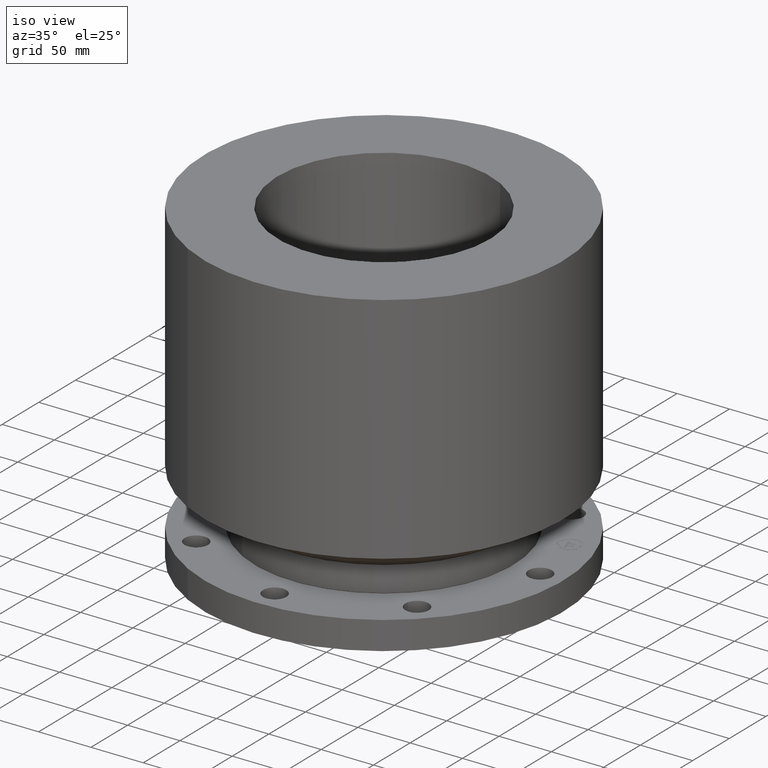
[diagram: clean part render]
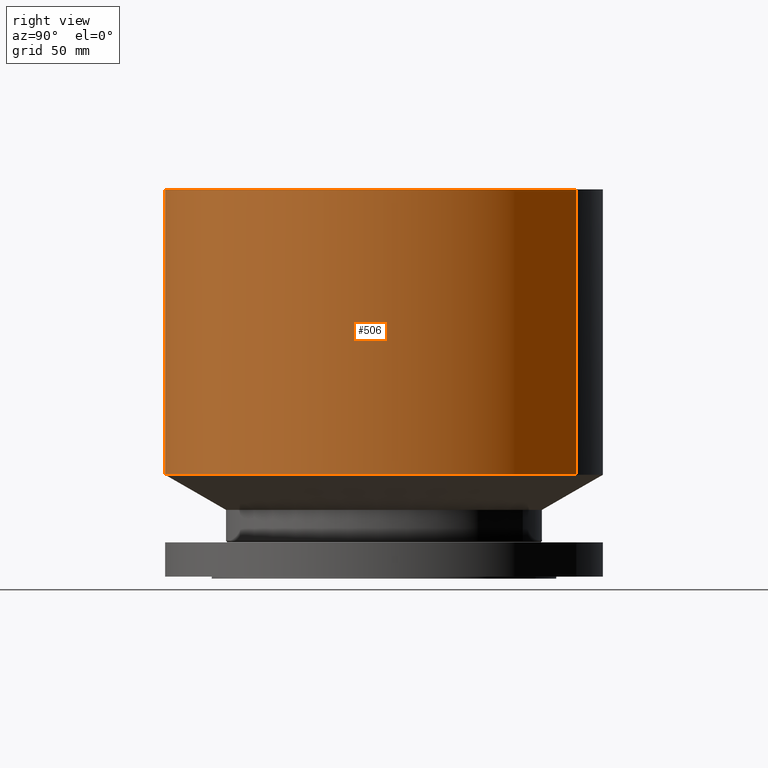
[diagram: tour spotlight — one face highlighted and labeled with its STEP entity id]
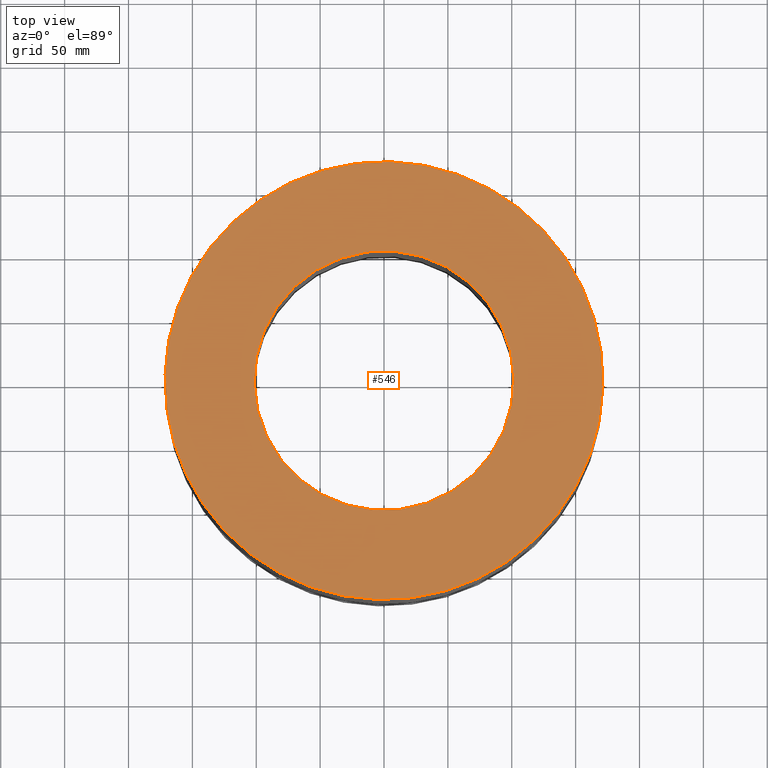
[diagram: tour spotlight — one face highlighted and labeled with its STEP entity id]
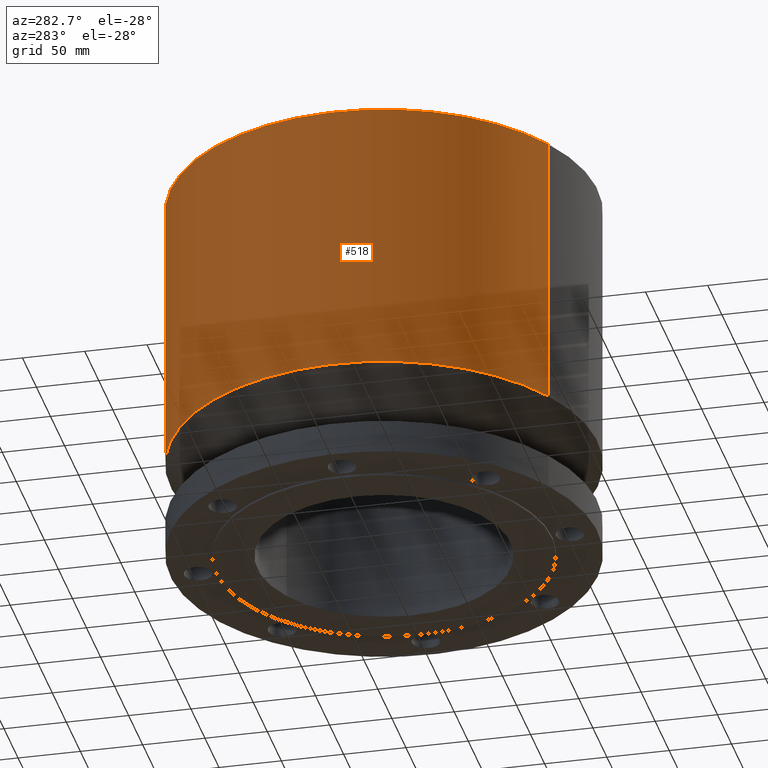
[diagram: tour spotlight — one face highlighted and labeled with its STEP entity id]
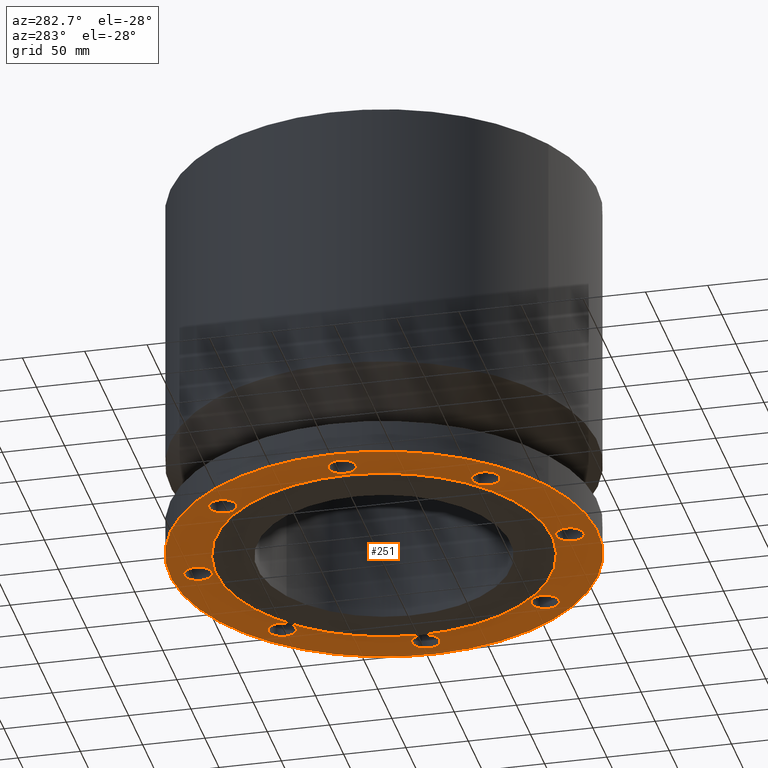
[diagram: tour spotlight — one face highlighted and labeled with its STEP entity id]
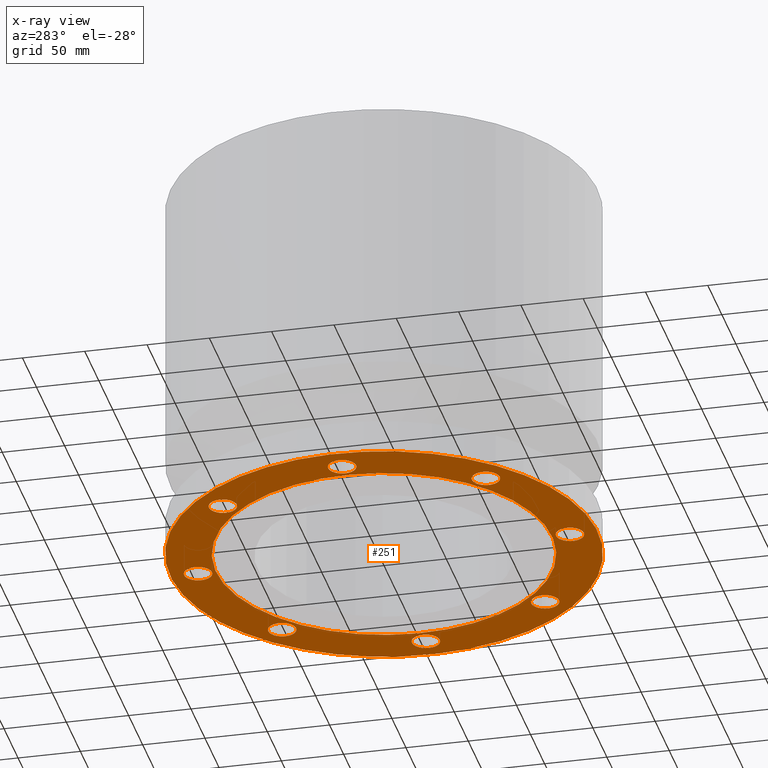
[diagram: x-ray of the same camera — body ghosted, this tour face saturated]
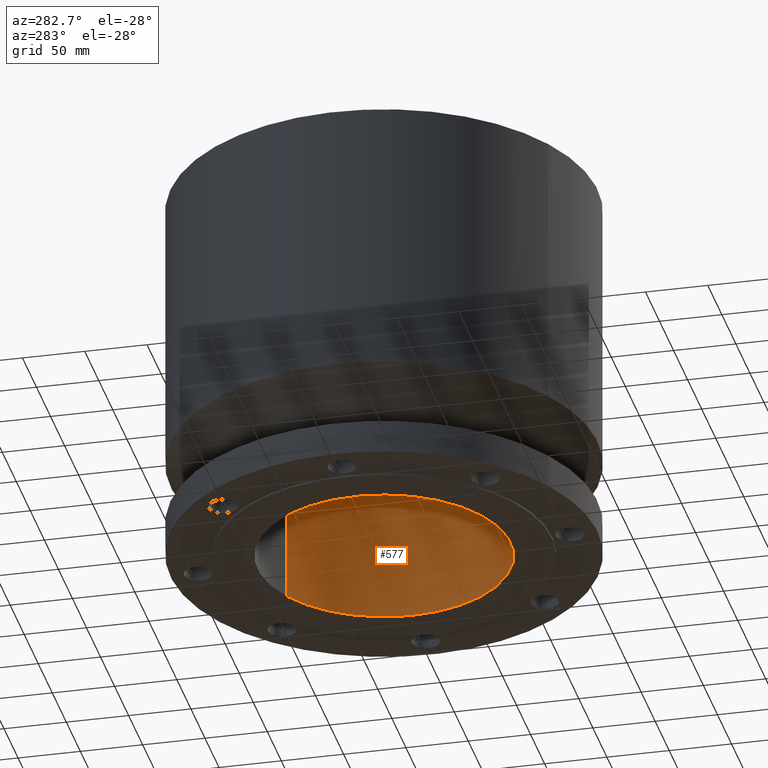
[diagram: tour spotlight — one face highlighted and labeled with its STEP entity id]
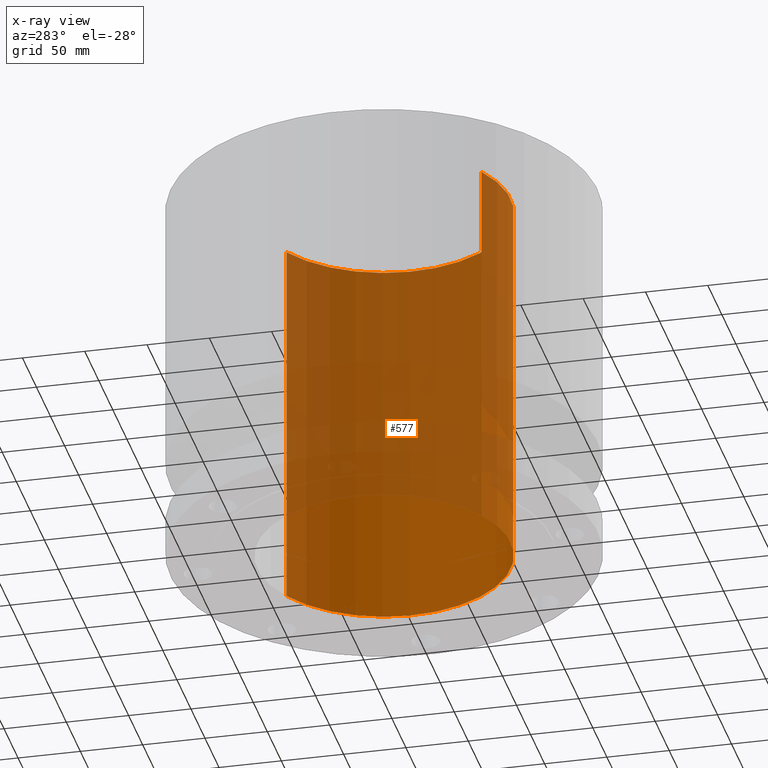
[diagram: x-ray of the same camera — body ghosted, this tour face saturated]
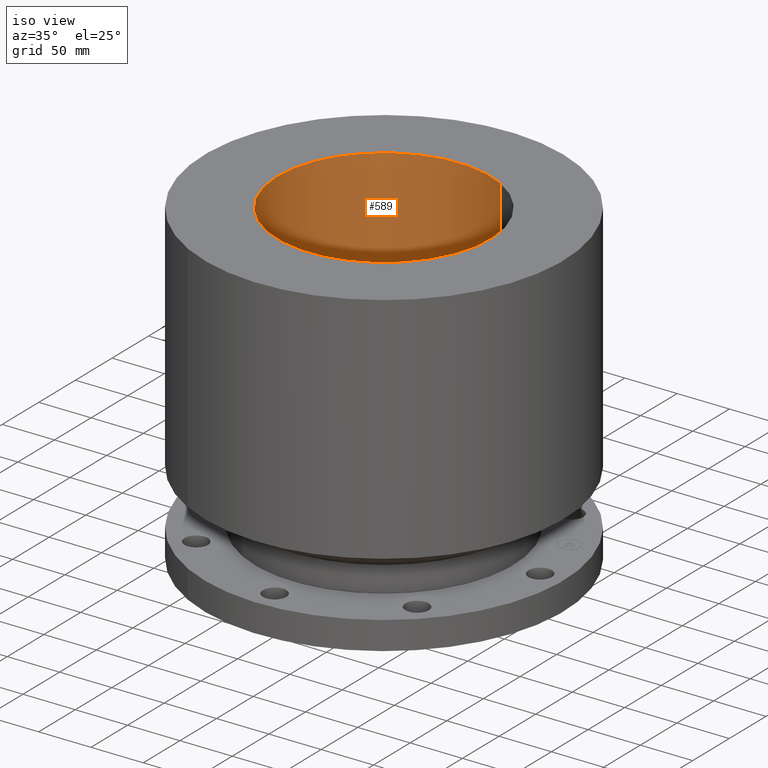
[diagram: tour spotlight — one face highlighted and labeled with its STEP entity id]
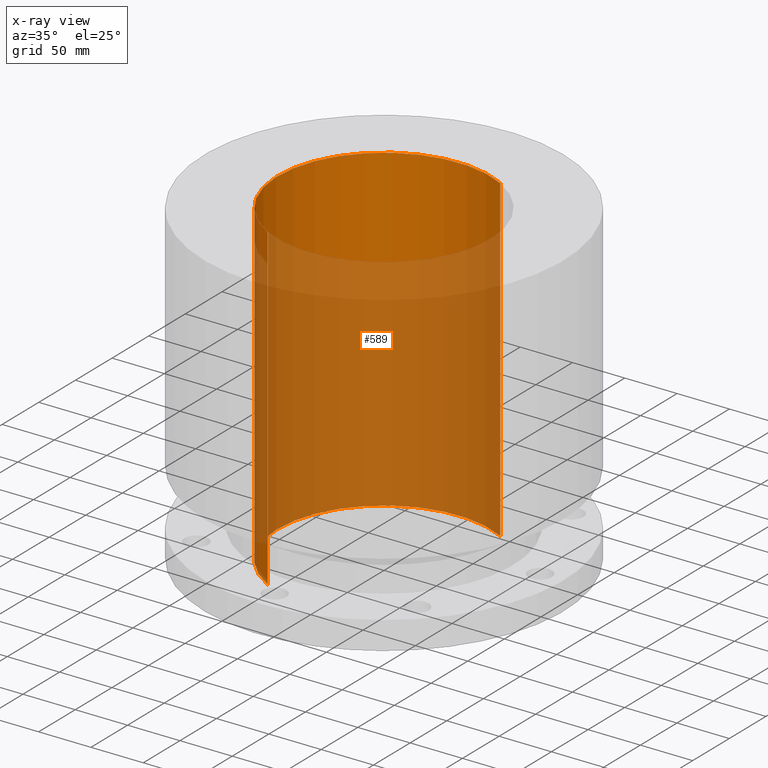
[diagram: x-ray of the same camera — body ghosted, this tour face saturated]
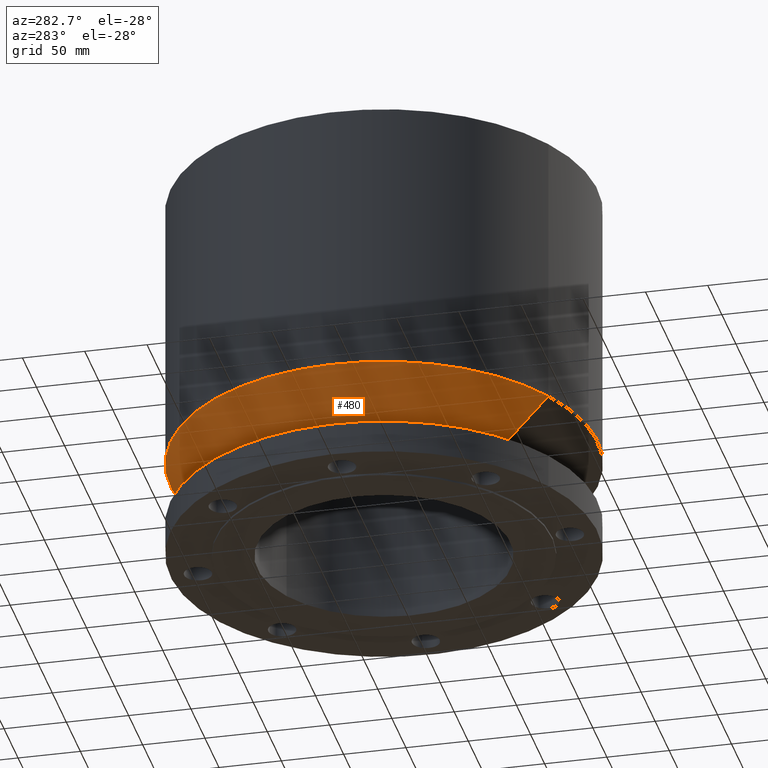
[diagram: tour spotlight — one face highlighted and labeled with its STEP entity id]
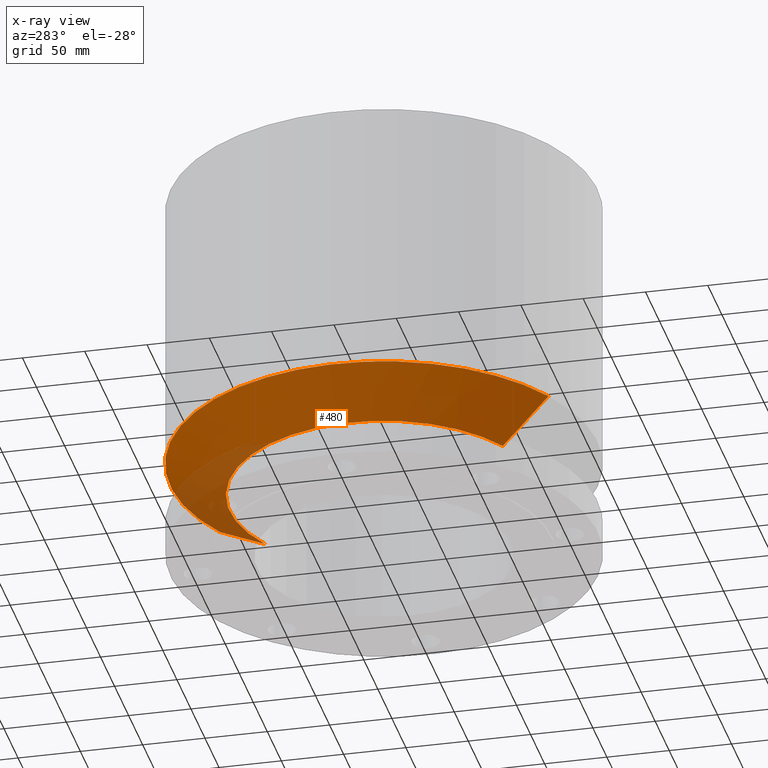
[diagram: x-ray of the same camera — body ghosted, this tour face saturated]
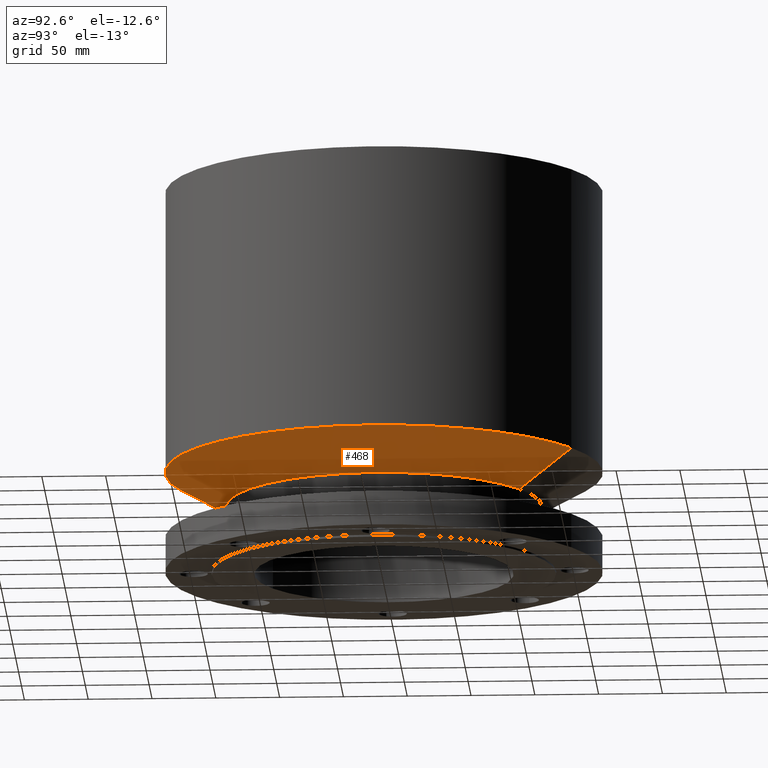
[diagram: tour spotlight — one face highlighted and labeled with its STEP entity id]
A machine part: a face-by-face anatomy tour. The part has 421 B-rep faces; the first image is the clean iso view, then the 8 largest visible faces are spotlighted one at a time (largest first), each with its STEP entity span.

Face 1 — right view, entity #506. In plain terms, the highlighted cylindrical surface (partial cylindrical patch) has radius 171.45 mm, axis along (0, 0, -1).
Definition (entity closure, byte-faithful):
#255=AXIS2_PLACEMENT_3D('Cylinder Axis2P3D',#252,#253,#254) ;
#452=AXIS2_PLACEMENT_3D('Circle Axis2P3D',#450,#451,$) ;
#490=AXIS2_PLACEMENT_3D('Circle Axis2P3D',#488,#489,$) ;
#252=CARTESIAN_POINT('Axis2P3D Location',(0.,0.,5.93750000002)) ;
#447=CARTESIAN_POINT('Vertex',(3.23612238559,5.92368229278,3.14003175474)) ;
#450=CARTESIAN_POINT('Axis2P3D Location',(0.,0.,3.14003175474)) ;
#454=CARTESIAN_POINT('Vertex',(-3.23612238559,-5.92368229278,3.14003175474)) ;
#481=CARTESIAN_POINT('Line Origine',(3.23612238559,5.92368229278,7.5387658774)) ;
#485=CARTESIAN_POINT('Vertex',(3.23612238559,5.92368229278,11.9375)) ;
#488=CARTESIAN_POINT('Axis2P3D Location',(0.,0.,11.9375)) ;
#492=CARTESIAN_POINT('Vertex',(-3.23612238559,-5.92368229278,11.9375)) ;
#495=CARTESIAN_POINT('Line Origine',(-3.23612238559,-5.92368229278,7.5387658774)) ;
#253=DIRECTION('Axis2P3D Direction',(0.,0.,-0.0393700787402)) ;
#254=DIRECTION('Axis2P3D XDirection',(-0.0188750212049,-0.0345504945626,0.)) ;
#451=DIRECTION('Axis2P3D Direction',(-0.,0.,0.0393700787402)) ;
#482=DIRECTION('Vector Direction',(0.,0.,-0.0393700787402)) ;
#489=DIRECTION('Axis2P3D Direction',(0.,0.,-0.0393700787402)) ;
#496=DIRECTION('Vector Direction',(0.,0.,-0.0393700787402)) ;
#483=VECTOR('Line Direction',#482,0.0393700787402) ;
#497=VECTOR('Line Direction',#496,0.0393700787402) ;
#501=ORIENTED_EDGE('',*,*,#456,.F.) ;
#502=ORIENTED_EDGE('',*,*,#487,.T.) ;
#503=ORIENTED_EDGE('',*,*,#494,.T.) ;
#504=ORIENTED_EDGE('',*,*,#499,.F.) ;
#506=ADVANCED_FACE('PartBody',(#505),#256,.T.) ;
#453=CIRCLE('generated circle',#452,6.75000000003) ;
#491=CIRCLE('generated circle',#490,6.75000000003) ;
#256=CYLINDRICAL_SURFACE('generated cylinder',#255,6.75000000003) ;
#456=EDGE_CURVE('',#448,#455,#453,.F.) ;
#487=EDGE_CURVE('',#448,#486,#484,.F.) ;
#494=EDGE_CURVE('',#486,#493,#491,.T.) ;
#499=EDGE_CURVE('',#455,#493,#498,.F.) ;
#500=EDGE_LOOP('',(#501,#502,#503,#504)) ;
#505=FACE_OUTER_BOUND('',#500,.T.) ;
#484=LINE('Line',#481,#483) ;
#498=LINE('Line',#495,#497) ;
#448=VERTEX_POINT('',#447) ;
#455=VERTEX_POINT('',#454) ;
#486=VERTEX_POINT('',#485) ;
#493=VERTEX_POINT('',#492) ;

Face 2 — top view, entity #546. In plain terms, the highlighted planar face has unit normal (0, 0, -1).
Definition (entity closure, byte-faithful):
#490=AXIS2_PLACEMENT_3D('Circle Axis2P3D',#488,#489,$) ;
#509=AXIS2_PLACEMENT_3D('Circle Axis2P3D',#507,#508,$) ;
#522=AXIS2_PLACEMENT_3D('Plane Axis2P3D',#519,#520,#521) ;
#530=AXIS2_PLACEMENT_3D('Circle Axis2P3D',#528,#529,$) ;
#539=AXIS2_PLACEMENT_3D('Circle Axis2P3D',#537,#538,$) ;
#485=CARTESIAN_POINT('Vertex',(3.23612238559,5.92368229278,11.9375)) ;
#488=CARTESIAN_POINT('Axis2P3D Location',(0.,0.,11.9375)) ;
#492=CARTESIAN_POINT('Vertex',(-3.23612238559,-5.92368229278,11.9375)) ;
#507=CARTESIAN_POINT('Axis2P3D Location',(0.,0.,11.9375)) ;
#519=CARTESIAN_POINT('Axis2P3D Location',(0.,6.75000000003,11.9375)) ;
#528=CARTESIAN_POINT('Axis2P3D Location',(0.,0.,11.9375)) ;
#532=CARTESIAN_POINT('Vertex',(-1.91770215442,-3.51033024758,11.9375)) ;
#534=CARTESIAN_POINT('Vertex',(1.91770215442,3.51033024758,11.9375)) ;
#537=CARTESIAN_POINT('Axis2P3D Location',(0.,0.,11.9375)) ;
#489=DIRECTION('Axis2P3D Direction',(0.,0.,-0.0393700787402)) ;
#508=DIRECTION('Axis2P3D Direction',(0.,0.,-0.0393700787402)) ;
#520=DIRECTION('Axis2P3D Direction',(0.,0.,-0.0393700787402)) ;
#521=DIRECTION('Axis2P3D XDirection',(0.0393700787402,0.,0.)) ;
#529=DIRECTION('Axis2P3D Direction',(0.,0.,-0.0393700787402)) ;
#538=DIRECTION('Axis2P3D Direction',(0.,0.,-0.0393700787402)) ;
#525=ORIENTED_EDGE('',*,*,#494,.F.) ;
#526=ORIENTED_EDGE('',*,*,#511,.F.) ;
#543=ORIENTED_EDGE('',*,*,#536,.T.) ;
#544=ORIENTED_EDGE('',*,*,#541,.T.) ;
#545=FACE_BOUND('',#542,.T.) ;
#546=ADVANCED_FACE('PartBody',(#527,#545),#523,.F.) ;
#491=CIRCLE('generated circle',#490,6.75000000003) ;
#510=CIRCLE('generated circle',#509,6.75000000003) ;
#531=CIRCLE('generated circle',#530,4.00000000002) ;
#540=CIRCLE('generated circle',#539,4.00000000002) ;
#494=EDGE_CURVE('',#486,#493,#491,.T.) ;
#511=EDGE_CURVE('',#493,#486,#510,.T.) ;
#536=EDGE_CURVE('',#533,#535,#531,.T.) ;
#541=EDGE_CURVE('',#535,#533,#540,.T.) ;
#524=EDGE_LOOP('',(#525,#526)) ;
#542=EDGE_LOOP('',(#543,#544)) ;
#527=FACE_OUTER_BOUND('',#524,.T.) ;
#523=PLANE('',#522) ;
#486=VERTEX_POINT('',#485) ;
#493=VERTEX_POINT('',#492) ;
#533=VERTEX_POINT('',#532) ;
#535=VERTEX_POINT('',#534) ;

Face 3 — auxiliary view, entity #518. In plain terms, the highlighted cylindrical surface (partial cylindrical patch) has radius 171.45 mm, axis along (0, 0, -1).
Definition (entity closure, byte-faithful):
#255=AXIS2_PLACEMENT_3D('Cylinder Axis2P3D',#252,#253,#254) ;
#471=AXIS2_PLACEMENT_3D('Circle Axis2P3D',#469,#470,$) ;
#509=AXIS2_PLACEMENT_3D('Circle Axis2P3D',#507,#508,$) ;
#252=CARTESIAN_POINT('Axis2P3D Location',(0.,0.,5.93750000002)) ;
#447=CARTESIAN_POINT('Vertex',(3.23612238559,5.92368229278,3.14003175474)) ;
#454=CARTESIAN_POINT('Vertex',(-3.23612238559,-5.92368229278,3.14003175474)) ;
#469=CARTESIAN_POINT('Axis2P3D Location',(0.,0.,3.14003175474)) ;
#481=CARTESIAN_POINT('Line Origine',(3.23612238559,5.92368229278,7.5387658774)) ;
#485=CARTESIAN_POINT('Vertex',(3.23612238559,5.92368229278,11.9375)) ;
#492=CARTESIAN_POINT('Vertex',(-3.23612238559,-5.92368229278,11.9375)) ;
#495=CARTESIAN_POINT('Line Origine',(-3.23612238559,-5.92368229278,7.5387658774)) ;
#507=CARTESIAN_POINT('Axis2P3D Location',(0.,0.,11.9375)) ;
#253=DIRECTION('Axis2P3D Direction',(0.,0.,-0.0393700787402)) ;
#254=DIRECTION('Axis2P3D XDirection',(-0.0188750212049,-0.0345504945626,0.)) ;
#470=DIRECTION('Axis2P3D Direction',(-0.,0.,0.0393700787402)) ;
#482=DIRECTION('Vector Direction',(0.,0.,-0.0393700787402)) ;
#496=DIRECTION('Vector Direction',(0.,0.,-0.0393700787402)) ;
#508=DIRECTION('Axis2P3D Direction',(0.,0.,-0.0393700787402)) ;
#483=VECTOR('Line Direction',#482,0.0393700787402) ;
#497=VECTOR('Line Direction',#496,0.0393700787402) ;
#513=ORIENTED_EDGE('',*,*,#473,.F.) ;
#514=ORIENTED_EDGE('',*,*,#499,.T.) ;
#515=ORIENTED_EDGE('',*,*,#511,.T.) ;
#516=ORIENTED_EDGE('',*,*,#487,.F.) ;
#518=ADVANCED_FACE('PartBody',(#517),#256,.T.) ;
#472=CIRCLE('generated circle',#471,6.75000000003) ;
#510=CIRCLE('generated circle',#509,6.75000000003) ;
#256=CYLINDRICAL_SURFACE('generated cylinder',#255,6.75000000003) ;
#473=EDGE_CURVE('',#455,#448,#472,.F.) ;
#487=EDGE_CURVE('',#448,#486,#484,.F.) ;
#499=EDGE_CURVE('',#455,#493,#498,.F.) ;
#511=EDGE_CURVE('',#493,#486,#510,.T.) ;
#512=EDGE_LOOP('',(#513,#514,#515,#516)) ;
#517=FACE_OUTER_BOUND('',#512,.T.) ;
#484=LINE('Line',#481,#483) ;
#498=LINE('Line',#495,#497) ;
#448=VERTEX_POINT('',#447) ;
#455=VERTEX_POINT('',#454) ;
#486=VERTEX_POINT('',#485) ;
#493=VERTEX_POINT('',#492) ;

Face 4 — auxiliary view, entity #251. An x-ray twin of the same camera follows (body ghosted, this face saturated) — the face is partly hidden behind the body. In plain terms, the highlighted planar face has unit normal (0, 0, -1).
Definition (entity closure, byte-faithful):
#51=AXIS2_PLACEMENT_3D('Circle Axis2P3D',#49,#50,$) ;
#78=AXIS2_PLACEMENT_3D('Plane Axis2P3D',#75,#76,#77) ;
#82=AXIS2_PLACEMENT_3D('Circle Axis2P3D',#80,#81,$) ;
#91=AXIS2_PLACEMENT_3D('Circle Axis2P3D',#89,#90,$) ;
#100=AXIS2_PLACEMENT_3D('Circle Axis2P3D',#98,#99,$) ;
#109=AXIS2_PLACEMENT_3D('Circle Axis2P3D',#107,#108,$) ;
#118=AXIS2_PLACEMENT_3D('Circle Axis2P3D',#116,#117,$) ;
#127=AXIS2_PLACEMENT_3D('Circle Axis2P3D',#125,#126,$) ;
#136=AXIS2_PLACEMENT_3D('Circle Axis2P3D',#134,#135,$) ;
#145=AXIS2_PLACEMENT_3D('Circle Axis2P3D',#143,#144,$) ;
#154=AXIS2_PLACEMENT_3D('Circle Axis2P3D',#152,#153,$) ;
#163=AXIS2_PLACEMENT_3D('Circle Axis2P3D',#161,#162,$) ;
#172=AXIS2_PLACEMENT_3D('Circle Axis2P3D',#170,#171,$) ;
#181=AXIS2_PLACEMENT_3D('Circle Axis2P3D',#179,#180,$) ;
#190=AXIS2_PLACEMENT_3D('Circle Axis2P3D',#188,#189,$) ;
#199=AXIS2_PLACEMENT_3D('Circle Axis2P3D',#197,#198,$) ;
#208=AXIS2_PLACEMENT_3D('Circle Axis2P3D',#206,#207,$) ;
#217=AXIS2_PLACEMENT_3D('Circle Axis2P3D',#215,#216,$) ;
#226=AXIS2_PLACEMENT_3D('Circle Axis2P3D',#224,#225,$) ;
#235=AXIS2_PLACEMENT_3D('Circle Axis2P3D',#233,#234,$) ;
#244=AXIS2_PLACEMENT_3D('Circle Axis2P3D',#242,#243,$) ;
#46=CARTESIAN_POINT('Vertex',(6.26113632726,0.210947236987,2.2401153548E-016)) ;
#49=CARTESIAN_POINT('Axis2P3D Location',(5.87500000002,0.,0.)) ;
#53=CARTESIAN_POINT('Vertex',(5.48886367279,-0.210947236987,2.2401153548E-016)) ;
#75=CARTESIAN_POINT('Axis2P3D Location',(0.,5.31000000002,0.)) ;
#80=CARTESIAN_POINT('Axis2P3D Location',(0.,0.,0.)) ;
#84=CARTESIAN_POINT('Vertex',(-3.23612238559,-5.92368229278,1.1189649382E-015)) ;
#86=CARTESIAN_POINT('Vertex',(3.23612238559,5.92368229278,1.1189649382E-015)) ;
#89=CARTESIAN_POINT('Axis2P3D Location',(0.,0.,0.)) ;
#98=CARTESIAN_POINT('Axis2P3D Location',(5.87500000002,0.,0.)) ;
#107=CARTESIAN_POINT('Axis2P3D Location',(0.,0.,0.)) ;
#111=CARTESIAN_POINT('Vertex',(2.54574961,4.65996340366,0.)) ;
#113=CARTESIAN_POINT('Vertex',(-2.54574961,-4.65996340366,0.)) ;
#116=CARTESIAN_POINT('Axis2P3D Location',(0.,0.,0.)) ;
#125=CARTESIAN_POINT('Axis2P3D Location',(4.15425233949,-4.15425233949,0.)) ;
#129=CARTESIAN_POINT('Vertex',(4.57645417668,-4.27812973319,0.)) ;
#131=CARTESIAN_POINT('Vertex',(3.73205050229,-4.03037494578,0.)) ;
#134=CARTESIAN_POINT('Axis2P3D Location',(4.15425233949,-4.15425233949,0.)) ;
#143=CARTESIAN_POINT('Axis2P3D Location',(1.39870617276E-016,-5.87500000002,0.)) ;
#147=CARTESIAN_POINT('Vertex',(0.210947236987,-6.26113632726,0.)) ;
#149=CARTESIAN_POINT('Vertex',(-0.210947236987,-5.48886367279,0.)) ;
#152=CARTESIAN_POINT('Axis2P3D Location',(-1.78335037026E-015,-5.87500000002,0.)) ;
#161=CARTESIAN_POINT('Axis2P3D Location',(-4.15425233949,-4.15425233949,0.)) ;
#165=CARTESIAN_POINT('Vertex',(-4.27812973319,-4.57645417668,0.)) ;
#167=CARTESIAN_POINT('Vertex',(-4.03037494578,-3.73205050229,0.)) ;
#170=CARTESIAN_POINT('Axis2P3D Location',(-4.15425233949,-4.15425233949,0.)) ;
#179=CARTESIAN_POINT('Axis2P3D Location',(-5.87500000002,-1.1189649382E-015,0.)) ;
#183=CARTESIAN_POINT('Vertex',(-6.26113632726,-0.210947236987,0.)) ;
#185=CARTESIAN_POINT('Vertex',(-5.48886367279,0.210947236987,0.)) ;
#188=CARTESIAN_POINT('Axis2P3D Location',(-5.87500000002,0.,0.)) ;
#197=CARTESIAN_POINT('Axis2P3D Location',(-4.15425233949,4.15425233949,0.)) ;
#201=CARTESIAN_POINT('Vertex',(-4.57645417668,4.27812973319,0.)) ;
#203=CARTESIAN_POINT('Vertex',(-3.73205050229,4.03037494578,0.)) ;
#206=CARTESIAN_POINT('Axis2P3D Location',(-4.15425233949,4.15425233949,0.)) ;
#215=CARTESIAN_POINT('Axis2P3D Location',(-8.39223703654E-016,5.87500000002,0.)) ;
#219=CARTESIAN_POINT('Vertex',(-0.210947236987,6.26113632726,0.)) ;
#221=CARTESIAN_POINT('Vertex',(0.210947236987,5.48886367279,0.)) ;
#224=CARTESIAN_POINT('Axis2P3D Location',(-1.39870617276E-015,5.87500000002,0.)) ;
#233=CARTESIAN_POINT('Axis2P3D Location',(4.15425233949,4.15425233949,0.)) ;
#237=CARTESIAN_POINT('Vertex',(4.27812973319,4.57645417668,0.)) ;
#239=CARTESIAN_POINT('Vertex',(4.03037494578,3.73205050229,0.)) ;
#242=CARTESIAN_POINT('Axis2P3D Location',(4.15425233949,4.15425233949,0.)) ;
#50=DIRECTION('Axis2P3D Direction',(0.,-0.,0.0393700787402)) ;
#76=DIRECTION('Axis2P3D Direction',(0.,0.,-0.0393700787402)) ;
#77=DIRECTION('Axis2P3D XDirection',(0.0393700787402,0.,0.)) ;
#81=DIRECTION('Axis2P3D Direction',(0.,0.,-0.0393700787402)) ;
#90=DIRECTION('Axis2P3D Direction',(0.,0.,-0.0393700787402)) ;
#99=DIRECTION('Axis2P3D Direction',(0.,0.,-0.0393700787402)) ;
#108=DIRECTION('Axis2P3D Direction',(0.,0.,-0.0393700787402)) ;
#117=DIRECTION('Axis2P3D Direction',(0.,0.,-0.0393700787402)) ;
#126=DIRECTION('Axis2P3D Direction',(0.,0.,-0.0393700787402)) ;
#135=DIRECTION('Axis2P3D Direction',(0.,0.,-0.0393700787402)) ;
#144=DIRECTION('Axis2P3D Direction',(0.,0.,-0.0393700787402)) ;
#153=DIRECTION('Axis2P3D Direction',(0.,0.,-0.0393700787402)) ;
#162=DIRECTION('Axis2P3D Direction',(0.,0.,-0.0393700787402)) ;
#171=DIRECTION('Axis2P3D Direction',(0.,0.,-0.0393700787402)) ;
#180=DIRECTION('Axis2P3D Direction',(0.,0.,-0.0393700787402)) ;
#189=DIRECTION('Axis2P3D Direction',(0.,0.,-0.0393700787402)) ;
#198=DIRECTION('Axis2P3D Direction',(0.,0.,-0.0393700787402)) ;
#207=DIRECTION('Axis2P3D Direction',(0.,0.,-0.0393700787402)) ;
#216=DIRECTION('Axis2P3D Direction',(0.,0.,-0.0393700787402)) ;
#225=DIRECTION('Axis2P3D Direction',(0.,0.,-0.0393700787402)) ;
#234=DIRECTION('Axis2P3D Direction',(0.,0.,-0.0393700787402)) ;
#243=DIRECTION('Axis2P3D Direction',(0.,0.,-0.0393700787402)) ;
#95=ORIENTED_EDGE('',*,*,#88,.T.) ;
#96=ORIENTED_EDGE('',*,*,#93,.T.) ;
#104=ORIENTED_EDGE('',*,*,#102,.F.) ;
#105=ORIENTED_EDGE('',*,*,#55,.F.) ;
#122=ORIENTED_EDGE('',*,*,#115,.F.) ;
#123=ORIENTED_EDGE('',*,*,#120,.F.) ;
#140=ORIENTED_EDGE('',*,*,#133,.F.) ;
#141=ORIENTED_EDGE('',*,*,#138,.F.) ;
#158=ORIENTED_EDGE('',*,*,#151,.F.) ;
#159=ORIENTED_EDGE('',*,*,#156,.F.) ;
#176=ORIENTED_EDGE('',*,*,#169,.F.) ;
#177=ORIENTED_EDGE('',*,*,#174,.F.) ;
#194=ORIENTED_EDGE('',*,*,#187,.F.) ;
#195=ORIENTED_EDGE('',*,*,#192,.F.) ;
#212=ORIENTED_EDGE('',*,*,#205,.F.) ;
#213=ORIENTED_EDGE('',*,*,#210,.F.) ;
#230=ORIENTED_EDGE('',*,*,#223,.F.) ;
#231=ORIENTED_EDGE('',*,*,#228,.F.) ;
#248=ORIENTED_EDGE('',*,*,#241,.F.) ;
#249=ORIENTED_EDGE('',*,*,#246,.F.) ;
#106=FACE_BOUND('',#103,.T.) ;
#124=FACE_BOUND('',#121,.T.) ;
#142=FACE_BOUND('',#139,.T.) ;
#160=FACE_BOUND('',#157,.T.) ;
#178=FACE_BOUND('',#175,.T.) ;
#196=FACE_BOUND('',#193,.T.) ;
#214=FACE_BOUND('',#211,.T.) ;
#232=FACE_BOUND('',#229,.T.) ;
#250=FACE_BOUND('',#247,.T.) ;
#251=ADVANCED_FACE('PartBody',(#97,#106,#124,#142,#160,#178,#196,#214,#232,#250),#79,.T.) ;
#52=CIRCLE('generated circle',#51,0.440000000002) ;
#83=CIRCLE('generated circle',#82,6.75000000003) ;
#92=CIRCLE('generated circle',#91,6.75000000003) ;
#101=CIRCLE('generated circle',#100,0.440000000002) ;
#110=CIRCLE('generated circle',#109,5.31000000002) ;
#119=CIRCLE('generated circle',#118,5.31000000002) ;
#128=CIRCLE('generated circle',#127,0.440000000002) ;
#137=CIRCLE('generated circle',#136,0.440000000002) ;
#146=CIRCLE('generated circle',#145,0.440000000002) ;
#155=CIRCLE('generated circle',#154,0.440000000002) ;
#164=CIRCLE('generated circle',#163,0.440000000002) ;
#173=CIRCLE('generated circle',#172,0.440000000002) ;
#182=CIRCLE('generated circle',#181,0.440000000002) ;
#191=CIRCLE('generated circle',#190,0.440000000002) ;
#200=CIRCLE('generated circle',#199,0.440000000002) ;
#209=CIRCLE('generated circle',#208,0.440000000002) ;
#218=CIRCLE('generated circle',#217,0.440000000002) ;
#227=CIRCLE('generated circle',#226,0.440000000002) ;
#236=CIRCLE('generated circle',#235,0.440000000002) ;
#245=CIRCLE('generated circle',#244,0.440000000002) ;
#55=EDGE_CURVE('',#47,#54,#52,.F.) ;
#88=EDGE_CURVE('',#85,#87,#83,.T.) ;
#93=EDGE_CURVE('',#87,#85,#92,.T.) ;
#102=EDGE_CURVE('',#54,#47,#101,.T.) ;
#115=EDGE_CURVE('',#112,#114,#110,.T.) ;
#120=EDGE_CURVE('',#114,#112,#119,.T.) ;
#133=EDGE_CURVE('',#130,#132,#128,.T.) ;
#138=EDGE_CURVE('',#132,#130,#137,.T.) ;
#151=EDGE_CURVE('',#148,#150,#146,.T.) ;
#156=EDGE_CURVE('',#150,#148,#155,.T.) ;
#169=EDGE_CURVE('',#166,#168,#164,.T.) ;
#174=EDGE_CURVE('',#168,#166,#173,.T.) ;
#187=EDGE_CURVE('',#184,#186,#182,.T.) ;
#192=EDGE_CURVE('',#186,#184,#191,.T.) ;
#205=EDGE_CURVE('',#202,#204,#200,.T.) ;
#210=EDGE_CURVE('',#204,#202,#209,.T.) ;
#223=EDGE_CURVE('',#220,#222,#218,.T.) ;
#228=EDGE_CURVE('',#222,#220,#227,.T.) ;
#241=EDGE_CURVE('',#238,#240,#236,.T.) ;
#246=EDGE_CURVE('',#240,#238,#245,.T.) ;
#94=EDGE_LOOP('',(#95,#96)) ;
#103=EDGE_LOOP('',(#104,#105)) ;
#121=EDGE_LOOP('',(#122,#123)) ;
#139=EDGE_LOOP('',(#140,#141)) ;
#157=EDGE_LOOP('',(#158,#159)) ;
#175=EDGE_LOOP('',(#176,#177)) ;
#193=EDGE_LOOP('',(#194,#195)) ;
#211=EDGE_LOOP('',(#212,#213)) ;
#229=EDGE_LOOP('',(#230,#231)) ;
#247=EDGE_LOOP('',(#248,#249)) ;
#97=FACE_OUTER_BOUND('',#94,.T.) ;
#79=PLANE('',#78) ;
#47=VERTEX_POINT('',#46) ;
#54=VERTEX_POINT('',#53) ;
#85=VERTEX_POINT('',#84) ;
#87=VERTEX_POINT('',#86) ;
#112=VERTEX_POINT('',#111) ;
#114=VERTEX_POINT('',#113) ;
#130=VERTEX_POINT('',#129) ;
#132=VERTEX_POINT('',#131) ;
#148=VERTEX_POINT('',#147) ;
#150=VERTEX_POINT('',#149) ;
#166=VERTEX_POINT('',#165) ;
#168=VERTEX_POINT('',#167) ;
#184=VERTEX_POINT('',#183) ;
#186=VERTEX_POINT('',#185) ;
#202=VERTEX_POINT('',#201) ;
#204=VERTEX_POINT('',#203) ;
#220=VERTEX_POINT('',#219) ;
#222=VERTEX_POINT('',#221) ;
#238=VERTEX_POINT('',#237) ;
#240=VERTEX_POINT('',#239) ;

Face 5 — auxiliary view, entity #577. An x-ray twin of the same camera follows (body ghosted, this face saturated) — the face is partly hidden behind the body. In plain terms, the highlighted cylindrical surface (partial cylindrical patch) has radius 101.6 mm, axis along (0, 0, -1).
Definition (entity closure, byte-faithful):
#539=AXIS2_PLACEMENT_3D('Circle Axis2P3D',#537,#538,$) ;
#550=AXIS2_PLACEMENT_3D('Cylinder Axis2P3D',#547,#548,#549) ;
#561=AXIS2_PLACEMENT_3D('Circle Axis2P3D',#559,#560,$) ;
#532=CARTESIAN_POINT('Vertex',(-1.91770215442,-3.51033024758,11.9375)) ;
#534=CARTESIAN_POINT('Vertex',(1.91770215442,3.51033024758,11.9375)) ;
#537=CARTESIAN_POINT('Axis2P3D Location',(0.,0.,11.9375)) ;
#547=CARTESIAN_POINT('Axis2P3D Location',(0.,0.,5.93750000002)) ;
#552=CARTESIAN_POINT('Line Origine',(1.91770215442,3.51033024758,5.93750000002)) ;
#556=CARTESIAN_POINT('Vertex',(1.91770215442,3.51033024758,-0.0625000000003)) ;
#559=CARTESIAN_POINT('Axis2P3D Location',(0.,0.,-0.0625000000003)) ;
#563=CARTESIAN_POINT('Vertex',(-1.91770215442,-3.51033024758,-0.0625000000003)) ;
#566=CARTESIAN_POINT('Line Origine',(-1.91770215442,-3.51033024758,5.93750000002)) ;
#538=DIRECTION('Axis2P3D Direction',(0.,0.,-0.0393700787402)) ;
#548=DIRECTION('Axis2P3D Direction',(0.,0.,-0.0393700787402)) ;
#549=DIRECTION('Axis2P3D XDirection',(-0.0188750212049,-0.0345504945626,0.)) ;
#553=DIRECTION('Vector Direction',(0.,0.,-0.0393700787402)) ;
#560=DIRECTION('Axis2P3D Direction',(0.,0.,-0.0393700787402)) ;
#567=DIRECTION('Vector Direction',(0.,0.,-0.0393700787402)) ;
#554=VECTOR('Line Direction',#553,0.0393700787402) ;
#568=VECTOR('Line Direction',#567,0.0393700787402) ;
#572=ORIENTED_EDGE('',*,*,#541,.F.) ;
#573=ORIENTED_EDGE('',*,*,#558,.T.) ;
#574=ORIENTED_EDGE('',*,*,#565,.T.) ;
#575=ORIENTED_EDGE('',*,*,#570,.F.) ;
#577=ADVANCED_FACE('PartBody',(#576),#551,.F.) ;
#540=CIRCLE('generated circle',#539,4.00000000002) ;
#562=CIRCLE('generated circle',#561,4.00000000002) ;
#551=CYLINDRICAL_SURFACE('generated cylinder',#550,4.00000000002) ;
#541=EDGE_CURVE('',#535,#533,#540,.T.) ;
#558=EDGE_CURVE('',#535,#557,#555,.T.) ;
#565=EDGE_CURVE('',#557,#564,#562,.T.) ;
#570=EDGE_CURVE('',#533,#564,#569,.T.) ;
#571=EDGE_LOOP('',(#572,#573,#574,#575)) ;
#576=FACE_OUTER_BOUND('',#571,.T.) ;
#555=LINE('Line',#552,#554) ;
#569=LINE('Line',#566,#568) ;
#533=VERTEX_POINT('',#532) ;
#535=VERTEX_POINT('',#534) ;
#557=VERTEX_POINT('',#556) ;
#564=VERTEX_POINT('',#563) ;

Face 6 — iso view, entity #589. An x-ray twin of the same camera follows (body ghosted, this face saturated) — the face is partly hidden behind the body. In plain terms, the highlighted cylindrical surface (partial cylindrical patch) has radius 101.6 mm, axis along (0, 0, -1).
Definition (entity closure, byte-faithful):
#530=AXIS2_PLACEMENT_3D('Circle Axis2P3D',#528,#529,$) ;
#550=AXIS2_PLACEMENT_3D('Cylinder Axis2P3D',#547,#548,#549) ;
#580=AXIS2_PLACEMENT_3D('Circle Axis2P3D',#578,#579,$) ;
#528=CARTESIAN_POINT('Axis2P3D Location',(0.,0.,11.9375)) ;
#532=CARTESIAN_POINT('Vertex',(-1.91770215442,-3.51033024758,11.9375)) ;
#534=CARTESIAN_POINT('Vertex',(1.91770215442,3.51033024758,11.9375)) ;
#547=CARTESIAN_POINT('Axis2P3D Location',(0.,0.,5.93750000002)) ;
#552=CARTESIAN_POINT('Line Origine',(1.91770215442,3.51033024758,5.93750000002)) ;
#556=CARTESIAN_POINT('Vertex',(1.91770215442,3.51033024758,-0.0625000000003)) ;
#563=CARTESIAN_POINT('Vertex',(-1.91770215442,-3.51033024758,-0.0625000000003)) ;
#566=CARTESIAN_POINT('Line Origine',(-1.91770215442,-3.51033024758,5.93750000002)) ;
#578=CARTESIAN_POINT('Axis2P3D Location',(0.,0.,-0.0625000000003)) ;
#529=DIRECTION('Axis2P3D Direction',(0.,0.,-0.0393700787402)) ;
#548=DIRECTION('Axis2P3D Direction',(0.,0.,-0.0393700787402)) ;
#549=DIRECTION('Axis2P3D XDirection',(-0.0188750212049,-0.0345504945626,0.)) ;
#553=DIRECTION('Vector Direction',(0.,0.,-0.0393700787402)) ;
#567=DIRECTION('Vector Direction',(0.,0.,-0.0393700787402)) ;
#579=DIRECTION('Axis2P3D Direction',(0.,0.,-0.0393700787402)) ;
#554=VECTOR('Line Direction',#553,0.0393700787402) ;
#568=VECTOR('Line Direction',#567,0.0393700787402) ;
#584=ORIENTED_EDGE('',*,*,#536,.F.) ;
#585=ORIENTED_EDGE('',*,*,#570,.T.) ;
#586=ORIENTED_EDGE('',*,*,#582,.T.) ;
#587=ORIENTED_EDGE('',*,*,#558,.F.) ;
#589=ADVANCED_FACE('PartBody',(#588),#551,.F.) ;
#531=CIRCLE('generated circle',#530,4.00000000002) ;
#581=CIRCLE('generated circle',#580,4.00000000002) ;
#551=CYLINDRICAL_SURFACE('generated cylinder',#550,4.00000000002) ;
#536=EDGE_CURVE('',#533,#535,#531,.T.) ;
#558=EDGE_CURVE('',#535,#557,#555,.T.) ;
#570=EDGE_CURVE('',#533,#564,#569,.T.) ;
#582=EDGE_CURVE('',#564,#557,#581,.T.) ;
#583=EDGE_LOOP('',(#584,#585,#586,#587)) ;
#588=FACE_OUTER_BOUND('',#583,.T.) ;
#555=LINE('Line',#552,#554) ;
#569=LINE('Line',#566,#568) ;
#533=VERTEX_POINT('',#532) ;
#535=VERTEX_POINT('',#534) ;
#557=VERTEX_POINT('',#556) ;
#564=VERTEX_POINT('',#563) ;

Face 7 — auxiliary view, entity #480. An x-ray twin of the same camera follows (body ghosted, this face saturated) — the face is partly hidden behind the body. In plain terms, the highlighted conical surface has half-angle 60 deg.
Definition (entity closure, byte-faithful):
#428=AXIS2_PLACEMENT_3D('Circle Axis2P3D',#426,#427,$) ;
#441=AXIS2_PLACEMENT_3D('Cone Axis2P3D',#438,#439,#440) ;
#471=AXIS2_PLACEMENT_3D('Circle Axis2P3D',#469,#470,$) ;
#404=CARTESIAN_POINT('Vertex',(2.3371995007,4.27821498923,2.05750000001)) ;
#411=CARTESIAN_POINT('Vertex',(-2.3371995007,-4.27821498923,2.05750000001)) ;
#426=CARTESIAN_POINT('Axis2P3D Location',(0.,0.,2.05750000001)) ;
#438=CARTESIAN_POINT('Axis2P3D Location',(0.,0.,2.05750000001)) ;
#443=CARTESIAN_POINT('Line Origine',(2.78666094315,5.10094864101,2.59876587738)) ;
#447=CARTESIAN_POINT('Vertex',(3.23612238559,5.92368229278,3.14003175474)) ;
#454=CARTESIAN_POINT('Vertex',(-3.23612238559,-5.92368229278,3.14003175474)) ;
#457=CARTESIAN_POINT('Line Origine',(-2.78666094315,-5.10094864101,2.59876587738)) ;
#469=CARTESIAN_POINT('Axis2P3D Location',(0.,0.,3.14003175474)) ;
#427=DIRECTION('Axis2P3D Direction',(0.,0.,-0.0393700787402)) ;
#439=DIRECTION('Axis2P3D Direction',(-0.,-0.,0.0393700787402)) ;
#440=DIRECTION('Axis2P3D XDirection',(0.0188750212049,0.0345504945626,0.)) ;
#444=DIRECTION('Vector Direction',(0.0163462478604,0.0299216060045,0.0196850393701)) ;
#458=DIRECTION('Vector Direction',(-0.0163462478604,-0.0299216060045,0.0196850393701)) ;
#470=DIRECTION('Axis2P3D Direction',(-0.,0.,0.0393700787402)) ;
#445=VECTOR('Line Direction',#444,0.0393700787402) ;
#459=VECTOR('Line Direction',#458,0.0393700787402) ;
#475=ORIENTED_EDGE('',*,*,#430,.F.) ;
#476=ORIENTED_EDGE('',*,*,#461,.T.) ;
#477=ORIENTED_EDGE('',*,*,#473,.T.) ;
#478=ORIENTED_EDGE('',*,*,#449,.F.) ;
#480=ADVANCED_FACE('PartBody',(#479),#442,.T.) ;
#429=CIRCLE('generated circle',#428,4.87500000002) ;
#472=CIRCLE('generated circle',#471,6.75000000003) ;
#442=CONICAL_SURFACE('Cone',#441,4.87500000002,1.0471975512) ;
#430=EDGE_CURVE('',#412,#405,#429,.T.) ;
#449=EDGE_CURVE('',#405,#448,#446,.T.) ;
#461=EDGE_CURVE('',#412,#455,#460,.T.) ;
#473=EDGE_CURVE('',#455,#448,#472,.F.) ;
#474=EDGE_LOOP('',(#475,#476,#477,#478)) ;
#479=FACE_OUTER_BOUND('',#474,.T.) ;
#446=LINE('Line',#443,#445) ;
#460=LINE('Line',#457,#459) ;
#405=VERTEX_POINT('',#404) ;
#412=VERTEX_POINT('',#411) ;
#448=VERTEX_POINT('',#447) ;
#455=VERTEX_POINT('',#454) ;

Face 8 — auxiliary view, entity #468. In plain terms, the highlighted conical surface has half-angle 60 deg.
Definition (entity closure, byte-faithful):
#409=AXIS2_PLACEMENT_3D('Circle Axis2P3D',#407,#408,$) ;
#441=AXIS2_PLACEMENT_3D('Cone Axis2P3D',#438,#439,#440) ;
#452=AXIS2_PLACEMENT_3D('Circle Axis2P3D',#450,#451,$) ;
#404=CARTESIAN_POINT('Vertex',(2.3371995007,4.27821498923,2.05750000001)) ;
#407=CARTESIAN_POINT('Axis2P3D Location',(0.,0.,2.05750000001)) ;
#411=CARTESIAN_POINT('Vertex',(-2.3371995007,-4.27821498923,2.05750000001)) ;
#438=CARTESIAN_POINT('Axis2P3D Location',(0.,0.,2.05750000001)) ;
#443=CARTESIAN_POINT('Line Origine',(2.78666094315,5.10094864101,2.59876587738)) ;
#447=CARTESIAN_POINT('Vertex',(3.23612238559,5.92368229278,3.14003175474)) ;
#450=CARTESIAN_POINT('Axis2P3D Location',(0.,0.,3.14003175474)) ;
#454=CARTESIAN_POINT('Vertex',(-3.23612238559,-5.92368229278,3.14003175474)) ;
#457=CARTESIAN_POINT('Line Origine',(-2.78666094315,-5.10094864101,2.59876587738)) ;
#408=DIRECTION('Axis2P3D Direction',(0.,0.,-0.0393700787402)) ;
#439=DIRECTION('Axis2P3D Direction',(-0.,-0.,0.0393700787402)) ;
#440=DIRECTION('Axis2P3D XDirection',(0.0188750212049,0.0345504945626,0.)) ;
#444=DIRECTION('Vector Direction',(0.0163462478604,0.0299216060045,0.0196850393701)) ;
#451=DIRECTION('Axis2P3D Direction',(-0.,0.,0.0393700787402)) ;
#458=DIRECTION('Vector Direction',(-0.0163462478604,-0.0299216060045,0.0196850393701)) ;
#445=VECTOR('Line Direction',#444,0.0393700787402) ;
#459=VECTOR('Line Direction',#458,0.0393700787402) ;
#463=ORIENTED_EDGE('',*,*,#413,.F.) ;
#464=ORIENTED_EDGE('',*,*,#449,.T.) ;
#465=ORIENTED_EDGE('',*,*,#456,.T.) ;
#466=ORIENTED_EDGE('',*,*,#461,.F.) ;
#468=ADVANCED_FACE('PartBody',(#467),#442,.T.) ;
#410=CIRCLE('generated circle',#409,4.87500000002) ;
#453=CIRCLE('generated circle',#452,6.75000000003) ;
#442=CONICAL_SURFACE('Cone',#441,4.87500000002,1.0471975512) ;
#413=EDGE_CURVE('',#405,#412,#410,.T.) ;
#449=EDGE_CURVE('',#405,#448,#446,.T.) ;
#456=EDGE_CURVE('',#448,#455,#453,.F.) ;
#461=EDGE_CURVE('',#412,#455,#460,.T.) ;
#462=EDGE_LOOP('',(#463,#464,#465,#466)) ;
#467=FACE_OUTER_BOUND('',#462,.T.) ;
#446=LINE('Line',#443,#445) ;
#460=LINE('Line',#457,#459) ;
#405=VERTEX_POINT('',#404) ;
#412=VERTEX_POINT('',#411) ;
#448=VERTEX_POINT('',#447) ;
#455=VERTEX_POINT('',#454) ;